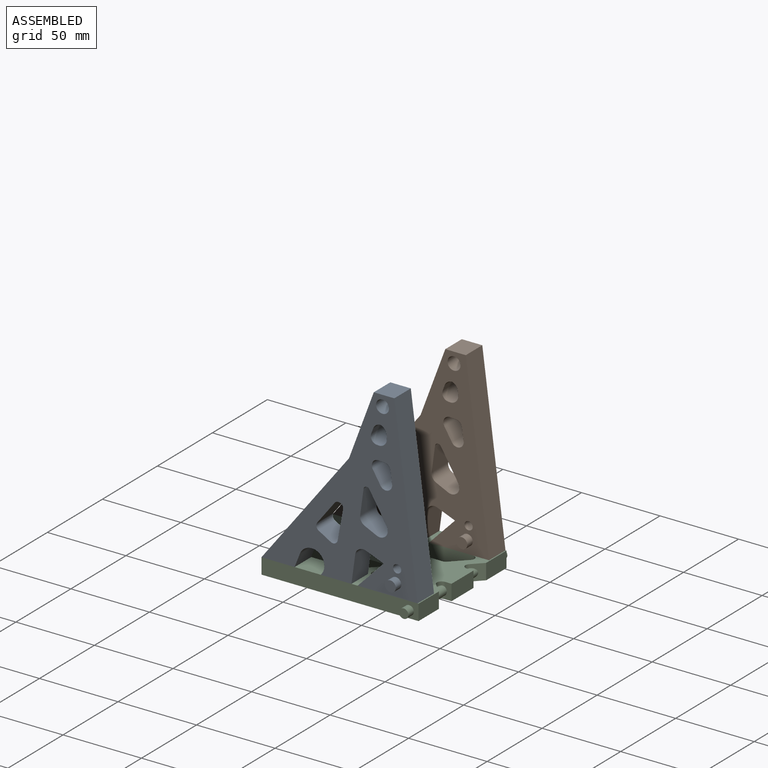
[diagram: assembled view]
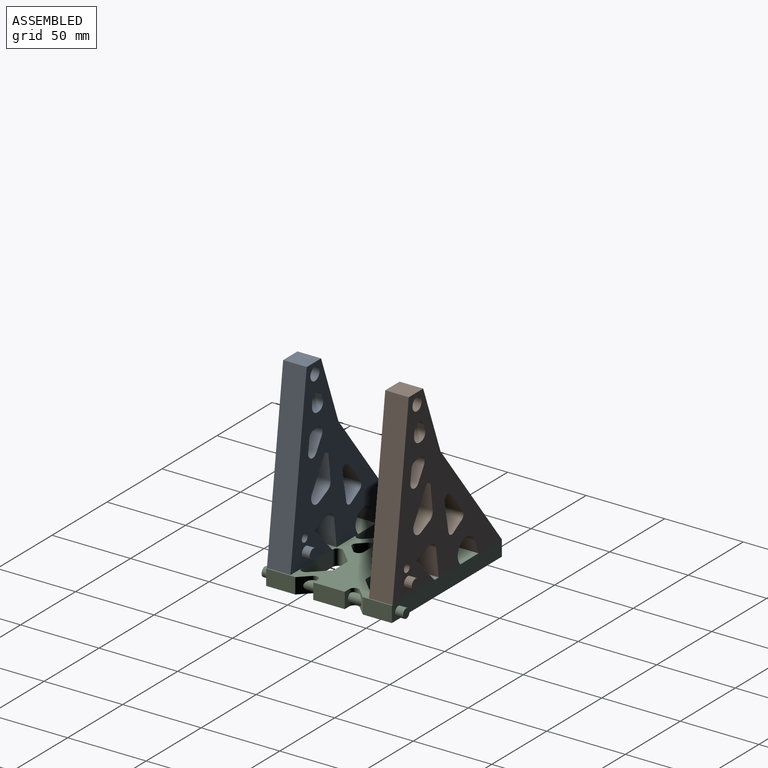
[diagram: assembled view, second angle]
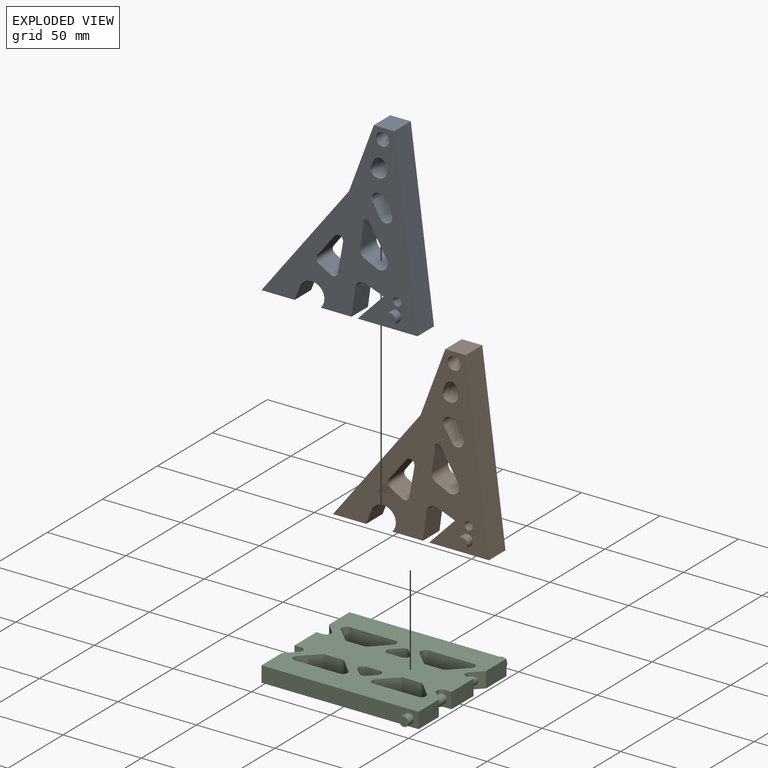
[diagram: exploded view]
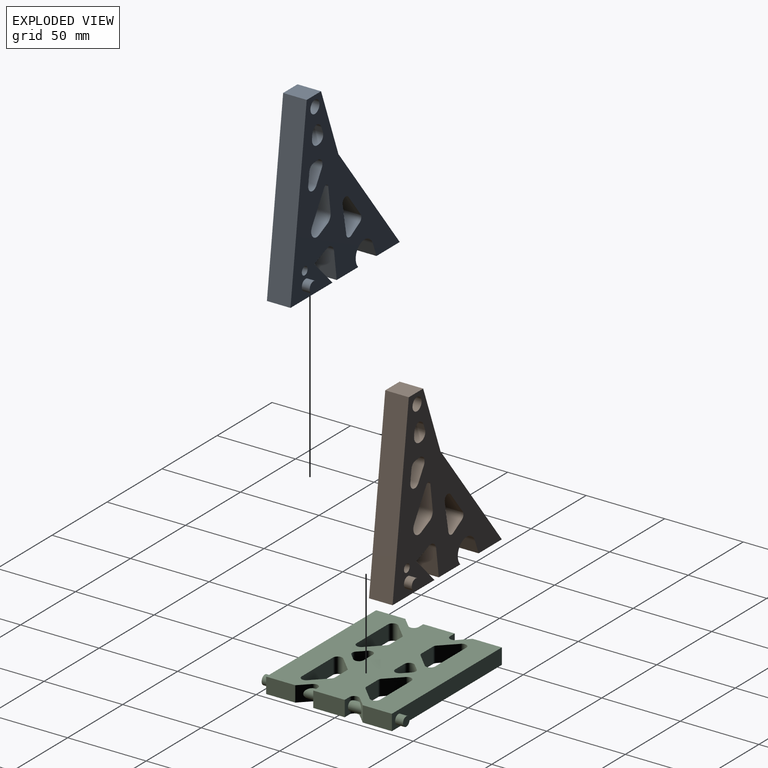
[diagram: exploded view, second angle]
ASSEMBLY  parts=3 mates=2
PART A: 49 faces, bbox 99.3x25x114 mm
  f0: plane 15x3.9mm, normal (-0.09,0,-1), area 58.8mm2, adj f27,f28,f30,f32
  f1: plane 15x7.78mm, normal (-0.99,0,-0.13), area 117.7mm2, adj f27,f28,f30,f31
  f2: plane 15.79x15mm, normal (0.99,0,-0.13), area 239mm2, adj f27,f28,f34,f44
  f3: plane 18.23x15mm, normal (-0.85,0,-0.52), area 319.9mm2, adj f27,f28,f33,f44
  f4: plane 21.1x15mm, normal (0,0,-1), area 316.5mm2, adj f5,f23,f27,f28
  f5: plane 15x8.61mm, normal (0.93,0,-0.36), area 138.7mm2, adj f4,f27,f28,f42
  f6: plane 15x0.12mm, normal (-0.49,0,-0.87), area 2mm2, adj f27,f28,f42,f43
  f7: plane 15x0.25mm, normal (-0.74,0,0.67), area 5mm2, adj f8,f27,f28,f43
  f8: plane 19.58x15mm, normal (0,0,-1), area 293.7mm2, adj f7,f9,f27,f28
  f9: plane 17.55x15mm, normal (0.99,0,-0.13), area 265.6mm2, adj f8,f27,f28,f41
  f10: plane 15x11.22mm, normal (-0.37,0,-0.93), area 181.2mm2, adj f11,f27,f28,f41
  f11: plane 17.03x16.49mm, normal (-0.72,0,0.7), area 355.6mm2, adj f10,f12,f27,f28
  f12: plane 38.12x15mm, normal (0,0,-1), area 571.8mm2, adj f11,f13,f27,f28
  f13: plane 114.05x15mm, normal (0.99,0,0.13), area 1725mm2, adj f12,f14,f27,f28
  f14: plane 15x13.05mm, normal (0,0,1), area 195.7mm2, adj f13,f15,f27,f28
  f15: plane 42.19x15.78mm, normal (-0.94,0,0.35), area 675.7mm2, adj f14,f23,f27,f28
  f16: plane 15x1.11mm, normal (0.1,0,0.99), area 16.8mm2, adj f27,f28,f29,f37
  f17: plane 15x3.42mm, normal (0.94,0,-0.35), area 54.7mm2, adj f27,f28,f29,f36
  f18: plane 15x14.25mm, normal (0.79,0,-0.61), area 270.6mm2, adj f27,f28,f38,f40
  f19: plane 18.72x15mm, normal (-0.98,0,0.18), area 285.4mm2, adj f27,f28,f38,f39
  f20: plane 15x7.66mm, normal (0.43,0,0.91), area 127mm2, adj f27,f28,f33,f34
  f21: cylinder r=2.61mm len=15mm, axis (0,1,0), area 245.7mm2, adj f27,f28
  f22: cylinder r=4.13mm len=15mm, axis (0,1,0), area 388.9mm2, adj f27,f28
  f23: plane 71.85x55.73mm, normal (-0.79,0,0.61), area 1364mm2, adj f4,f15,f27,f28
  f24: plane 15x2.32mm, normal (-0.99,0,-0.13), area 35.1mm2, adj f27,f28,f35,f37
  f25: plane 15x7.67mm, normal (0.5,0,0.86), area 133.1mm2, adj f27,f28,f39,f40
  f26: plane 15x8.13mm, normal (0.85,0,0.52), area 142.6mm2, adj f27,f28,f31,f32
  f27: plane 114.05x99.34mm, normal (0,-1,0), area 4469.5mm2, adj f0,f1,f2,f3,f4,f5,f6,f7
  f28: plane 114.05x99.34mm, normal (0,1,0), area 4469.5mm2, adj f0,f1,f2,f3,f4,f5,f6,f7
  f29: cylinder r=4mm len=15mm, axis (0,-1,0), area 109.7mm2, adj f16,f17,f27,f28
  f30: cylinder r=4mm len=15mm, axis (0,-1,0), area 81mm2, adj f0,f1,f27,f28
  f31: cylinder r=4mm len=15mm, axis (0,1,0), area 163.7mm2, adj f1,f26,f27,f28
  f32: cylinder r=4mm len=15mm, axis (0,1,0), area 132.3mm2, adj f0,f26,f27,f28
  f33: cylinder r=5mm len=15mm, axis (0,-1,0), area 191.6mm2, adj f3,f20,f27,f28
  f34: cylinder r=5mm len=15mm, axis (0,-1,0), area 95mm2, adj f2,f20,f27,f28
  f35: cylinder r=5mm len=15mm, axis (0,-1,0), area 90.4mm2, adj f24,f27,f28,f36
  f36: cylinder r=5mm len=15mm, axis (0,1,0), area 89mm2, adj f17,f27,f28,f35
  f37: cylinder r=5mm len=15mm, axis (0,1,0), area 135mm2, adj f16,f24,f27,f28
  f38: cylinder r=3mm len=15mm, axis (0,1,0), area 119.7mm2, adj f18,f19,f27,f28
  f39: cylinder r=3mm len=15mm, axis (0,1,0), area 86.4mm2, adj f19,f25,f27,f28
  f40: cylinder r=3mm len=15mm, axis (0,-1,0), area 76.6mm2, adj f18,f25,f27,f28
  f41: cylinder r=5mm len=15mm, axis (0,1,0), area 136.2mm2, adj f9,f10,f27,f28
  f42: cylinder r=8mm len=15mm, axis (0,1,0), area 205.2mm2, adj f5,f6,f27,f28
  f43: cylinder r=8mm len=15mm, axis (0,-1,0), area 215.9mm2, adj f6,f7,f27,f28
  f44: cylinder r=2mm len=15mm, axis (0,-1,0), area 73.9mm2, adj f2,f3,f27,f28
  f45: plane 6.95x6.95mm, normal (0,1,0), area 37.9mm2, adj f46
  f46: cylinder r=3.48mm len=6.95mm, axis (0,1,0), area 109.2mm2, adj f28,f45
  f47: cylinder r=3.48mm len=6.95mm, axis (0,1,0), area 109.2mm2, adj f27,f48
  f48: plane 6.95x6.95mm, normal (0,-1,0), area 37.9mm2, adj f47
PART B: same geometry as A
PART C: 74 faces, bbox 100x90x10 mm
  f0: cylinder r=3mm len=10mm, axis (0,0,-1), area 50mm2, adj f16,f17,f44,f45,f69
  f1: cylinder r=3mm len=5.12mm, axis (0,0,1), area 12.6mm2, adj f22,f42,f45,f68
  f2: cylinder r=3mm len=5.12mm, axis (0,0,1), area 17.9mm2, adj f22,f42,f44,f68
  f3: cylinder r=3mm len=5.12mm, axis (0,0,-1), area 17.9mm2, adj f34,f35,f44,f67
  f4: cylinder r=3mm len=5.12mm, axis (0,0,-1), area 12.6mm2, adj f34,f35,f45,f67
  f5: cylinder r=3mm len=10mm, axis (0,0,1), area 50mm2, adj f8,f43,f44,f45,f66
  f6: plane 10x9.88mm, normal (0.71,-0.71,0), area 139.7mm2, adj f7,f44,f45,f64
  f7: plane 11.69x10mm, normal (0,-1,0), area 116.9mm2, adj f6,f44,f45,f61
  f8: plane 10x9mm, normal (-0.71,-0.71,0), area 126.4mm2, adj f5,f44,f45,f61,f66
  f9: plane 10x8.44mm, normal (0,-1,0), area 84.4mm2, adj f44,f45,f59,f60
  f10: plane 10x4.22mm, normal (-0.71,0.71,0), area 59.7mm2, adj f44,f45,f60,f65
  f11: plane 11.69x10mm, normal (0,-1,0), area 116.9mm2, adj f38,f44,f45,f58
  f12: plane 10x9mm, normal (-0.71,-0.71,0), area 127.3mm2, adj f44,f45,f58,f63
  f13: plane 28.44x10mm, normal (0,1,0), area 284.4mm2, adj f44,f45,f62,f63
  f14: plane 10x4.22mm, normal (-0.71,-0.71,0), area 59.7mm2, adj f44,f45,f53,f56
  f15: plane 10x8.44mm, normal (0,1,0), area 84.4mm2, adj f44,f45,f53,f54
  f16: plane 28.44x10mm, normal (0,-1,0), area 284.4mm2, adj f0,f44,f45,f48
  f17: plane 10x9mm, normal (-0.71,0.71,0), area 126.4mm2, adj f0,f44,f45,f51,f69
  f18: plane 10.44x10mm, normal (0,1,0), area 104.4mm2, adj f44,f45,f51,f52
  f19: plane 10x9mm, normal (0.71,0.71,0), area 127.3mm2, adj f44,f45,f46,f50
  f20: plane 28.44x10mm, normal (0,-1,0), area 284.4mm2, adj f44,f45,f46,f47
  f21: plane 10x9mm, normal (-0.71,0.71,0), area 127.3mm2, adj f44,f45,f47,f55
  f22: plane 10x6.34mm, normal (0.71,-0.71,0), area 66.7mm2, adj f1,f2,f23,f44,f45,f68
  f23: plane 18.54x10mm, normal (1,0,0), area 185.4mm2, adj f22,f24,f44,f45
  f24: plane 100x10mm, normal (0,1,0), area 971.7mm2, adj f23,f25,f44,f45,f72
  f25: plane 18.54x10mm, normal (-1,0,0), area 185.4mm2, adj f24,f26,f44,f45
  f26: plane 10x6.34mm, normal (-0.71,-0.71,0), area 89.7mm2, adj f25,f44,f45,f49
  f27: plane 10x4.22mm, normal (0,1,0), area 42.2mm2, adj f28,f44,f45,f49
  f28: plane 20x10mm, normal (-1,0,0), area 200mm2, adj f27,f29,f44,f45
  f29: plane 10x4.22mm, normal (0,-1,0), area 42.2mm2, adj f28,f44,f45,f57
  f30: plane 10x6.34mm, normal (-0.71,0.71,0), area 89.7mm2, adj f31,f44,f45,f57
  f31: plane 18.54x10mm, normal (-1,0,0), area 185.4mm2, adj f30,f32,f44,f45
  f32: plane 100x10mm, normal (0,-1,0), area 971.7mm2, adj f31,f33,f44,f45,f71
  f33: plane 18.54x10mm, normal (1,0,0), area 185.4mm2, adj f32,f34,f44,f45
  f34: plane 10x6.34mm, normal (0.71,0.71,0), area 66.7mm2, adj f3,f4,f33,f44,f45,f67
  f35: plane 10x4.22mm, normal (0,-1,0), area 38mm2, adj f3,f4,f36,f44,f45,f67
  f36: plane 20x10mm, normal (1,0,0), area 200mm2, adj f35,f42,f44,f45
  f37: plane 10x4.22mm, normal (0.71,0.71,0), area 59.7mm2, adj f44,f45,f59,f65
  f38: plane 10x9.88mm, normal (0.71,-0.71,0), area 139.7mm2, adj f11,f44,f45,f62
  f39: plane 10x4.22mm, normal (0.71,-0.71,0), area 59.7mm2, adj f44,f45,f54,f56
  f40: plane 10x9mm, normal (0.71,0.71,0), area 127.3mm2, adj f44,f45,f48,f52
  f41: plane 10.44x10mm, normal (0,1,0), area 104.4mm2, adj f44,f45,f50,f55
  f42: plane 10x4.22mm, normal (0,1,0), area 38mm2, adj f1,f2,f36,f44,f45,f68
  f43: plane 28.44x10mm, normal (0,1,0), area 284.4mm2, adj f5,f44,f45,f64
  f44: plane 100x80mm, normal (0,0,1), area 5981.6mm2, adj f0,f2,f3,f5,f6,f7,f8,f9
  f45: plane 100x80mm, normal (0,0,-1), area 5981.6mm2, adj f0,f1,f4,f5,f6,f7,f8,f9
  f46: cylinder r=3mm len=10mm, axis (0,0,-1), area 70.7mm2, adj f19,f20,f44,f45
  f47: cylinder r=3mm len=10mm, axis (0,0,1), area 70.7mm2, adj f20,f21,f44,f45
  f48: cylinder r=3mm len=10mm, axis (0,0,1), area 70.7mm2, adj f16,f40,f44,f45
  f49: cylinder r=3mm len=10mm, axis (0,0,1), area 70.7mm2, adj f26,f27,f44,f45
  f50: cylinder r=3mm len=10mm, axis (0,0,-1), area 23.6mm2, adj f19,f41,f44,f45
  f51: cylinder r=3mm len=10mm, axis (0,0,-1), area 23.6mm2, adj f17,f18,f44,f45
  f52: cylinder r=3mm len=10mm, axis (0,0,1), area 23.6mm2, adj f18,f40,f44,f45
  f53: cylinder r=3mm len=10mm, axis (0,0,-1), area 70.7mm2, adj f14,f15,f44,f45
  f54: cylinder r=3mm len=10mm, axis (0,0,-1), area 70.7mm2, adj f15,f39,f44,f45
  f55: cylinder r=3mm len=10mm, axis (0,0,1), area 23.6mm2, adj f21,f41,f44,f45
  f56: cylinder r=3mm len=10mm, axis (0,0,1), area 47.1mm2, adj f14,f39,f44,f45
  f57: cylinder r=3mm len=10mm, axis (0,0,-1), area 70.7mm2, adj f29,f30,f44,f45
  f58: cylinder r=3mm len=10mm, axis (0,0,-1), area 23.6mm2, adj f11,f12,f44,f45
  f59: cylinder r=3mm len=10mm, axis (0,0,1), area 70.7mm2, adj f9,f37,f44,f45
  f60: cylinder r=3mm len=10mm, axis (0,0,1), area 70.7mm2, adj f9,f10,f44,f45
  f61: cylinder r=3mm len=10mm, axis (0,0,1), area 23.6mm2, adj f7,f8,f44,f45
  f62: cylinder r=3mm len=10mm, axis (0,0,1), area 70.7mm2, adj f13,f38,f44,f45
  f63: cylinder r=3mm len=10mm, axis (0,0,-1), area 70.7mm2, adj f12,f13,f44,f45
  f64: cylinder r=3mm len=10mm, axis (0,0,-1), area 70.7mm2, adj f6,f43,f44,f45
  f65: cylinder r=3mm len=10mm, axis (0,0,1), area 47.1mm2, adj f10,f37,f44,f45
  f66: cylinder r=3mm len=4.86mm, axis (0,1,0), area 21.6mm2, adj f5,f8
  f67: cylinder r=3mm len=8.49mm, axis (0,1,0), area 77.6mm2, adj f3,f4,f34,f35
  f68: cylinder r=3mm len=8.49mm, axis (0,1,0), area 77.6mm2, adj f1,f2,f22,f42
  f69: cylinder r=3mm len=4.86mm, axis (0,1,0), area 21.6mm2, adj f0,f17
  f70: plane 6x6mm, normal (0,-1,0), area 28.3mm2, adj f71
  f71: cylinder r=3mm len=6mm, axis (0,1,0), area 94.2mm2, adj f32,f70
  f72: cylinder r=3mm len=6mm, axis (0,1,0), area 94.2mm2, adj f24,f73
  f73: plane 6x6mm, normal (0,1,0), area 28.3mm2, adj f72
PLACE A t=(11.43,-27.73,62.09)mm
PLACE B t=(11.43,37.27,62.09)mm
PLACE C t=(-13.67,-2.65,-10.17)mm
MATE fastened A.f4 <-> C.f44  axis (0,0,-1) through (-48.75,-42.73,-0.17)mm
MATE fastened B.f4 <-> C.f44  axis (0,0,-1) through (-48.75,37.27,-0.17)mm
